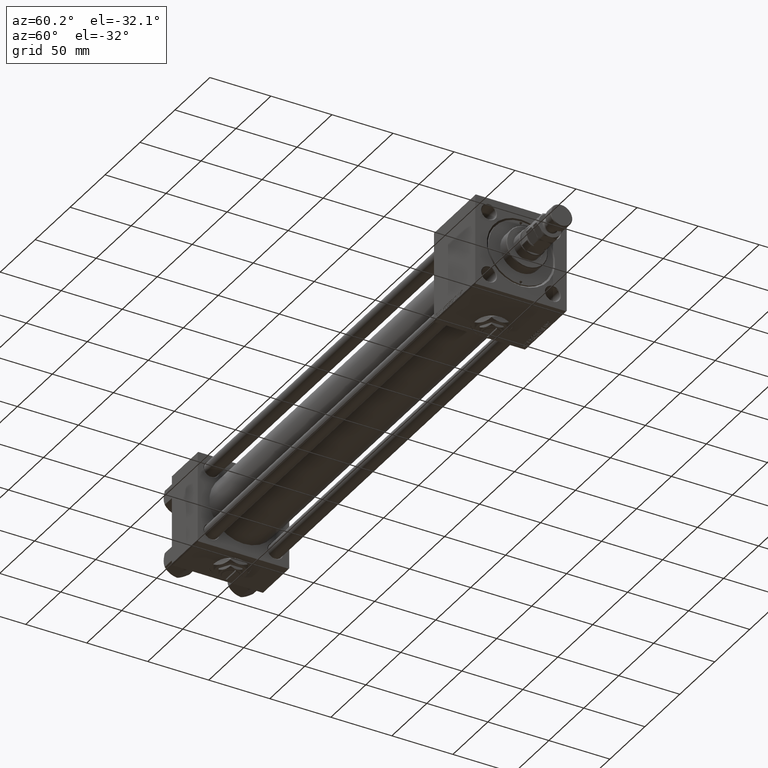
[diagram: clean part render]
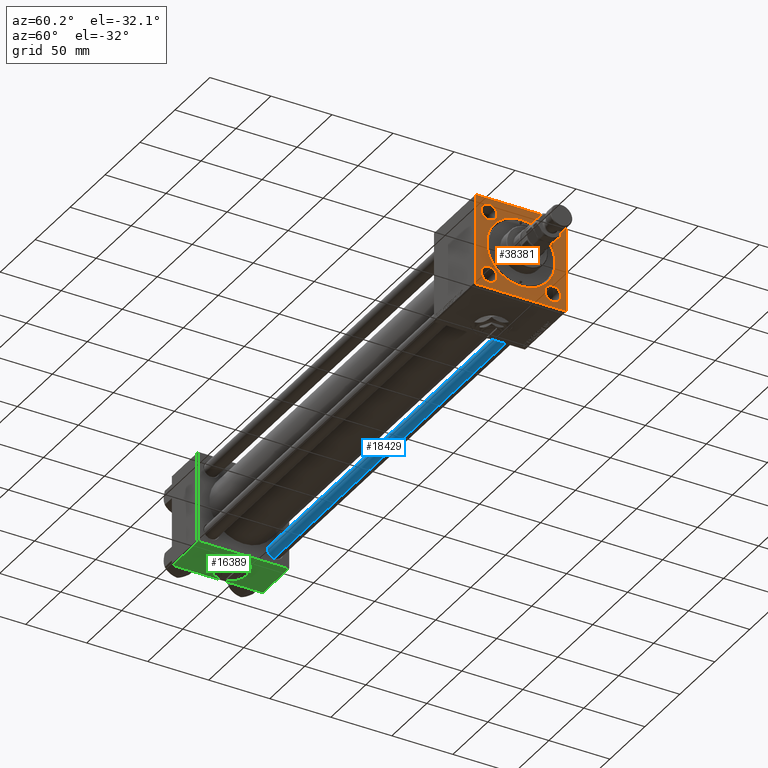
[diagram: same view with three faces highlighted in distinct colors, each labeled with its STEP entity id]
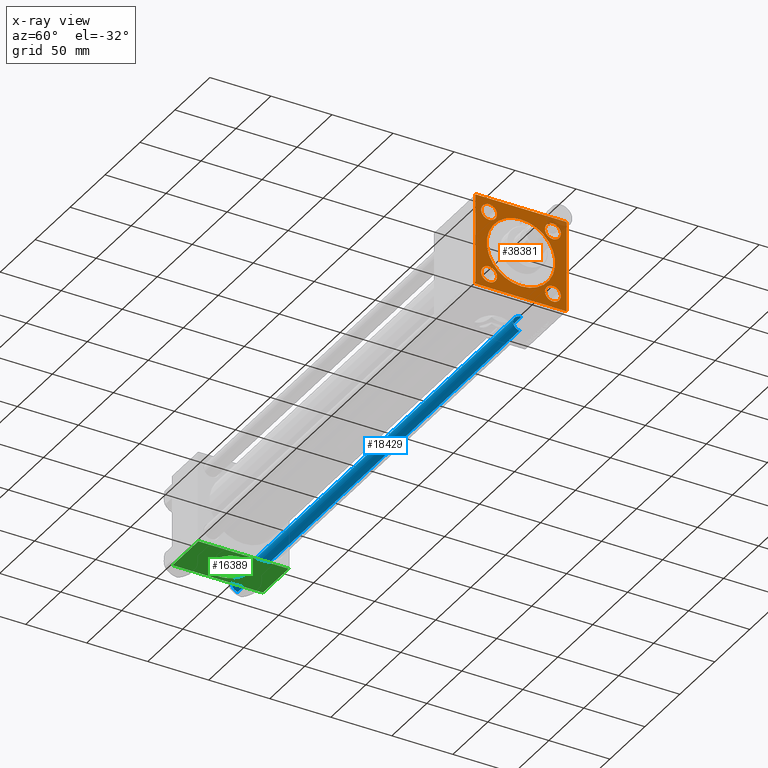
[diagram: x-ray of the same camera — body ghosted, the three highlighted faces saturated]
A machine part, auxiliary view with three faces highlighted in distinct colors.
The next image is the same camera in x-ray (body ghosted, the three faces saturated) — at least one of them is partly hidden behind the body in this view.
Their STEP definitions:

[orange] entity #38381 — the highlighted planar face has unit normal (-1, 0, 0).
#228 = DIRECTION ( 'NONE',  ( -1.000000000000000000, -0.000000000000000000, 0.000000000000000000 ) ) ;
#745 = EDGE_CURVE ( 'NONE', #32223, #28109, #43655, .T. ) ;
#1222 = CIRCLE ( 'NONE', #31742, 6.500000000000119904 ) ;
#1476 = DIRECTION ( 'NONE',  ( -1.000000000000000000, -0.000000000000000000, 0.000000000000000000 ) ) ;
#1511 = CARTESIAN_POINT ( 'NONE',  ( 434.0000000000000000, 26.14999999999999858, -19.64999999999988489 ) ) ;
#1642 = CIRCLE ( 'NONE', #39164, 28.00000000000008171 ) ;
#1670 = ORIENTED_EDGE ( 'NONE', *, *, #21514, .T. ) ;
#2296 = VERTEX_POINT ( 'NONE', #51882 ) ;
#2302 = LINE ( 'NONE', #27414, #23495 ) ;
#2342 = DIRECTION ( 'NONE',  ( -1.000000000000000000, -0.000000000000000000, 0.000000000000000000 ) ) ;
#2367 = ORIENTED_EDGE ( 'NONE', *, *, #16642, .T. ) ;
#2412 = CIRCLE ( 'NONE', #18976, 6.500000000000119904 ) ;
#3232 = CIRCLE ( 'NONE', #11958, 6.500000000000119904 ) ;
#4165 = CIRCLE ( 'NONE', #32099, 6.500000000000119904 ) ;
#4256 = CARTESIAN_POINT ( 'NONE',  ( 434.0000000000000000, 37.50000000000000000, -37.50000000000000000 ) ) ;
#4469 = CARTESIAN_POINT ( 'NONE',  ( 434.0000000000000000, -26.14999999999999147, 26.14999999999999503 ) ) ;
#5011 = DIRECTION ( 'NONE',  ( 0.000000000000000000, 0.000000000000000000, 1.000000000000000000 ) ) ;
#5044 = AXIS2_PLACEMENT_3D ( 'NONE', #4469, #25760, #5011 ) ;
#5656 = DIRECTION ( 'NONE',  ( 0.000000000000000000, 0.000000000000000000, 1.000000000000000000 ) ) ;
#5786 = FACE_BOUND ( 'NONE', #32576, .T. ) ;
#5956 = DIRECTION ( 'NONE',  ( -0.000000000000000000, -0.7071067811865474617, -0.7071067811865474617 ) ) ;
#6056 = DIRECTION ( 'NONE',  ( -1.000000000000000000, -0.000000000000000000, 0.000000000000000000 ) ) ;
#6898 = VECTOR ( 'NONE', #25474, 1000.000000000000000 ) ;
#7560 = VERTEX_POINT ( 'NONE', #36692 ) ;
#7732 = VERTEX_POINT ( 'NONE', #28132 ) ;
#7807 = DIRECTION ( 'NONE',  ( 0.000000000000000000, -1.000000000000000000, 0.000000000000000000 ) ) ;
#8073 = VECTOR ( 'NONE', #51145, 1000.000000000000114 ) ;
#8440 = DIRECTION ( 'NONE',  ( 0.000000000000000000, 0.000000000000000000, 1.000000000000000000 ) ) ;
#8620 = EDGE_CURVE ( 'NONE', #2296, #7560, #16002, .T. ) ;
#8720 = CARTESIAN_POINT ( 'NONE',  ( 434.0000000000000000, 26.14999999999999858, 26.15000000000000213 ) ) ;
#9137 = DIRECTION ( 'NONE',  ( 0.000000000000000000, 0.000000000000000000, 1.000000000000000000 ) ) ;
#9299 = EDGE_LOOP ( 'NONE', ( #39886, #23892 ) ) ;
#10180 = CIRCLE ( 'NONE', #17168, 6.500000000000119904 ) ;
#10265 = DIRECTION ( 'NONE',  ( 0.000000000000000000, 0.000000000000000000, 1.000000000000000000 ) ) ;
#10278 = EDGE_CURVE ( 'NONE', #37252, #27043, #47030, .T. ) ;
#10473 = VECTOR ( 'NONE', #48015, 1000.000000000000000 ) ;
#10534 = DIRECTION ( 'NONE',  ( -1.000000000000000000, -0.000000000000000000, 0.000000000000000000 ) ) ;
#11691 = CARTESIAN_POINT ( 'NONE',  ( 434.0000000000000000, -26.14999999999999147, 19.64999999999988134 ) ) ;
#11916 = VERTEX_POINT ( 'NONE', #52957 ) ;
#11958 = AXIS2_PLACEMENT_3D ( 'NONE', #16890, #228, #12514 ) ;
#12514 = DIRECTION ( 'NONE',  ( 0.000000000000000000, 0.000000000000000000, 1.000000000000000000 ) ) ;
#12523 = VERTEX_POINT ( 'NONE', #35801 ) ;
#13154 = EDGE_CURVE ( 'NONE', #29147, #7732, #1222, .T. ) ;
#13282 = VECTOR ( 'NONE', #7807, 1000.000000000000000 ) ;
#13844 = CARTESIAN_POINT ( 'NONE',  ( 434.0000000000000000, 3.429011037612599137E-15, 28.00000000000008171 ) ) ;
#14185 = DIRECTION ( 'NONE',  ( 0.000000000000000000, 0.000000000000000000, 1.000000000000000000 ) ) ;
#14361 = CARTESIAN_POINT ( 'NONE',  ( 434.0000000000000000, 26.14999999999999858, 26.15000000000000213 ) ) ;
#14663 = CARTESIAN_POINT ( 'NONE',  ( 434.0000000000000000, 37.50000000000000000, -36.99999999999993605 ) ) ;
#14845 = EDGE_CURVE ( 'NONE', #28109, #25658, #32622, .T. ) ;
#15679 = CARTESIAN_POINT ( 'NONE',  ( 434.0000000000000000, -36.99999999999994316, 37.49999999999997868 ) ) ;
#16002 = LINE ( 'NONE', #4256, #13282 ) ;
#16105 = CARTESIAN_POINT ( 'NONE',  ( 434.0000000000000000, -26.14999999999999147, 32.65000000000011227 ) ) ;
#16108 = AXIS2_PLACEMENT_3D ( 'NONE', #45686, #50341, #24903 ) ;
#16483 = DIRECTION ( 'NONE',  ( 0.000000000000000000, -9.251858538542972814E-17, -1.000000000000000000 ) ) ;
#16642 = EDGE_CURVE ( 'NONE', #12523, #11916, #41431, .T. ) ;
#16890 = CARTESIAN_POINT ( 'NONE',  ( 434.0000000000000000, 26.14999999999999858, -26.15000000000000213 ) ) ;
#17154 = ORIENTED_EDGE ( 'NONE', *, *, #31235, .F. ) ;
#17168 = AXIS2_PLACEMENT_3D ( 'NONE', #19614, #19342, #14185 ) ;
#17404 = CARTESIAN_POINT ( 'NONE',  ( 434.0000000000000000, 0.000000000000000000, 0.000000000000000000 ) ) ;
#17799 = CARTESIAN_POINT ( 'NONE',  ( 434.0000000000000000, 0.000000000000000000, 0.000000000000000000 ) ) ;
#18243 = CARTESIAN_POINT ( 'NONE',  ( 434.0000000000000000, -37.50000000000000000, 36.99999999999992184 ) ) ;
#18976 = AXIS2_PLACEMENT_3D ( 'NONE', #14361, #2342, #10265 ) ;
#19342 = DIRECTION ( 'NONE',  ( -1.000000000000000000, -0.000000000000000000, 0.000000000000000000 ) ) ;
#19585 = ORIENTED_EDGE ( 'NONE', *, *, #31803, .T. ) ;
#19614 = CARTESIAN_POINT ( 'NONE',  ( 434.0000000000000000, -26.15000000000000213, -26.15000000000000213 ) ) ;
#20165 = EDGE_LOOP ( 'NONE', ( #25024, #44587 ) ) ;
#21189 = DIRECTION ( 'NONE',  ( -1.000000000000000000, -0.000000000000000000, 0.000000000000000000 ) ) ;
#21209 = VERTEX_POINT ( 'NONE', #16105 ) ;
#21514 = EDGE_CURVE ( 'NONE', #25658, #7560, #23699, .T. ) ;
#21611 = AXIS2_PLACEMENT_3D ( 'NONE', #38106, #1476, #9137 ) ;
#21939 = EDGE_CURVE ( 'NONE', #7732, #29147, #3232, .T. ) ;
#22451 = CIRCLE ( 'NONE', #53035, 28.00000000000008171 ) ;
#23495 = VECTOR ( 'NONE', #35635, 1000.000000000000000 ) ;
#23699 = LINE ( 'NONE', #28338, #40758 ) ;
#23892 = ORIENTED_EDGE ( 'NONE', *, *, #48964, .T. ) ;
#23922 = CARTESIAN_POINT ( 'NONE',  ( 434.0000000000000000, -37.50000000000000000, 36.99999999999992184 ) ) ;
#23970 = CARTESIAN_POINT ( 'NONE',  ( 434.0000000000000000, 26.14999999999999858, 32.65000000000012648 ) ) ;
#24697 = VERTEX_POINT ( 'NONE', #23970 ) ;
#24903 = DIRECTION ( 'NONE',  ( 0.000000000000000000, 0.000000000000000000, 1.000000000000000000 ) ) ;
#25024 = ORIENTED_EDGE ( 'NONE', *, *, #49605, .T. ) ;
#25196 = LINE ( 'NONE', #41880, #6898 ) ;
#25474 = DIRECTION ( 'NONE',  ( 0.000000000000000000, -1.000000000000000000, -1.850371707708594316E-16 ) ) ;
#25658 = VERTEX_POINT ( 'NONE', #42015 ) ;
#25659 = EDGE_CURVE ( 'NONE', #38937, #44734, #1642, .T. ) ;
#25760 = DIRECTION ( 'NONE',  ( -1.000000000000000000, -0.000000000000000000, 0.000000000000000000 ) ) ;
#25827 = CARTESIAN_POINT ( 'NONE',  ( 434.0000000000000000, 0.000000000000000000, 0.000000000000000000 ) ) ;
#26270 = FACE_BOUND ( 'NONE', #9299, .T. ) ;
#26543 = VECTOR ( 'NONE', #16483, 1000.000000000000000 ) ;
#26680 = ORIENTED_EDGE ( 'NONE', *, *, #48721, .T. ) ;
#27043 = VERTEX_POINT ( 'NONE', #27674 ) ;
#27180 = DIRECTION ( 'NONE',  ( 0.000000000000000000, 0.000000000000000000, 1.000000000000000000 ) ) ;
#27414 = CARTESIAN_POINT ( 'NONE',  ( 434.0000000000000000, 37.50000000000000000, 37.49999999999999289 ) ) ;
#27627 = ORIENTED_EDGE ( 'NONE', *, *, #8620, .F. ) ;
#27674 = CARTESIAN_POINT ( 'NONE',  ( 434.0000000000000000, 36.99999999999994316, 37.49999999999999289 ) ) ;
#28109 = VERTEX_POINT ( 'NONE', #23922 ) ;
#28132 = CARTESIAN_POINT ( 'NONE',  ( 434.0000000000000000, 26.14999999999999858, -32.65000000000012648 ) ) ;
#28338 = CARTESIAN_POINT ( 'NONE',  ( 434.0000000000000000, -36.99999999999990052, -37.50000000000000000 ) ) ;
#29147 = VERTEX_POINT ( 'NONE', #1511 ) ;
#29536 = ORIENTED_EDGE ( 'NONE', *, *, #21939, .T. ) ;
#29808 = VERTEX_POINT ( 'NONE', #33007 ) ;
#29982 = EDGE_CURVE ( 'NONE', #27043, #32223, #25196, .T. ) ;
#30762 = DIRECTION ( 'NONE',  ( -1.000000000000000000, -0.000000000000000000, 0.000000000000000000 ) ) ;
#30854 = ORIENTED_EDGE ( 'NONE', *, *, #10278, .T. ) ;
#30901 = FACE_OUTER_BOUND ( 'NONE', #53273, .T. ) ;
#31235 = EDGE_CURVE ( 'NONE', #37252, #51620, #2302, .T. ) ;
#31400 = CARTESIAN_POINT ( 'NONE',  ( 434.0000000000000000, 0.000000000000000000, -28.00000000000008171 ) ) ;
#31742 = AXIS2_PLACEMENT_3D ( 'NONE', #47969, #10534, #27180 ) ;
#31803 = EDGE_CURVE ( 'NONE', #2296, #51620, #51333, .T. ) ;
#32099 = AXIS2_PLACEMENT_3D ( 'NONE', #8720, #33037, #8440 ) ;
#32223 = VERTEX_POINT ( 'NONE', #15679 ) ;
#32576 = EDGE_LOOP ( 'NONE', ( #26680, #50481 ) ) ;
#32622 = LINE ( 'NONE', #50116, #26543 ) ;
#33007 = CARTESIAN_POINT ( 'NONE',  ( 434.0000000000000000, 26.14999999999999858, 19.64999999999988134 ) ) ;
#33037 = DIRECTION ( 'NONE',  ( -1.000000000000000000, -0.000000000000000000, 0.000000000000000000 ) ) ;
#33400 = ORIENTED_EDGE ( 'NONE', *, *, #13154, .T. ) ;
#34492 = DIRECTION ( 'NONE',  ( 0.000000000000000000, 0.000000000000000000, 1.000000000000000000 ) ) ;
#35022 = PLANE ( 'NONE',  #42127 ) ;
#35635 = DIRECTION ( 'NONE',  ( 0.000000000000000000, 0.000000000000000000, -1.000000000000000000 ) ) ;
#35801 = CARTESIAN_POINT ( 'NONE',  ( 434.0000000000000000, -26.15000000000000213, -32.65000000000012648 ) ) ;
#36332 = VERTEX_POINT ( 'NONE', #11691 ) ;
#36692 = CARTESIAN_POINT ( 'NONE',  ( 434.0000000000000000, -36.99999999999990052, -37.50000000000000000 ) ) ;
#37252 = VERTEX_POINT ( 'NONE', #42554 ) ;
#37733 = CARTESIAN_POINT ( 'NONE',  ( 434.0000000000000000, 37.50000000000000000, -36.99999999999993605 ) ) ;
#38106 = CARTESIAN_POINT ( 'NONE',  ( 434.0000000000000000, -26.14999999999999147, 26.14999999999999503 ) ) ;
#38381 = ADVANCED_FACE ( 'NONE', ( #43478, #26270, #42684, #43210, #5786, #30901 ), #35022, .F. ) ;
#38937 = VERTEX_POINT ( 'NONE', #13844 ) ;
#39164 = AXIS2_PLACEMENT_3D ( 'NONE', #17404, #30762, #5656 ) ;
#39361 = ORIENTED_EDGE ( 'NONE', *, *, #14845, .T. ) ;
#39750 = ORIENTED_EDGE ( 'NONE', *, *, #47242, .T. ) ;
#39886 = ORIENTED_EDGE ( 'NONE', *, *, #52823, .T. ) ;
#40382 = DIRECTION ( 'NONE',  ( 0.000000000000000000, 0.7071067811865474617, -0.7071067811865474617 ) ) ;
#40413 = ORIENTED_EDGE ( 'NONE', *, *, #29982, .T. ) ;
#40758 = VECTOR ( 'NONE', #40382, 1000.000000000000114 ) ;
#40795 = CIRCLE ( 'NONE', #5044, 6.500000000000113687 ) ;
#41431 = CIRCLE ( 'NONE', #16108, 6.500000000000119904 ) ;
#41716 = EDGE_LOOP ( 'NONE', ( #2367, #39750 ) ) ;
#41880 = CARTESIAN_POINT ( 'NONE',  ( 434.0000000000000000, 37.50000000000000000, 37.49999999999999289 ) ) ;
#41901 = ORIENTED_EDGE ( 'NONE', *, *, #745, .T. ) ;
#42015 = CARTESIAN_POINT ( 'NONE',  ( 434.0000000000000000, -37.50000000000000711, -36.99999999999989342 ) ) ;
#42127 = AXIS2_PLACEMENT_3D ( 'NONE', #17799, #6056, #34492 ) ;
#42554 = CARTESIAN_POINT ( 'NONE',  ( 434.0000000000000000, 37.50000000000000000, 36.99999999999993605 ) ) ;
#42684 = FACE_BOUND ( 'NONE', #41716, .T. ) ;
#43210 = FACE_BOUND ( 'NONE', #44849, .T. ) ;
#43478 = FACE_BOUND ( 'NONE', #20165, .T. ) ;
#43655 = LINE ( 'NONE', #18243, #47991 ) ;
#44587 = ORIENTED_EDGE ( 'NONE', *, *, #52635, .T. ) ;
#44734 = VERTEX_POINT ( 'NONE', #31400 ) ;
#44849 = EDGE_LOOP ( 'NONE', ( #29536, #33400 ) ) ;
#45686 = CARTESIAN_POINT ( 'NONE',  ( 434.0000000000000000, -26.15000000000000213, -26.15000000000000213 ) ) ;
#46495 = CARTESIAN_POINT ( 'NONE',  ( 434.0000000000000000, 36.99999999999994316, 37.49999999999999289 ) ) ;
#47030 = LINE ( 'NONE', #46495, #8073 ) ;
#47142 = DIRECTION ( 'NONE',  ( 0.000000000000000000, 0.000000000000000000, 1.000000000000000000 ) ) ;
#47242 = EDGE_CURVE ( 'NONE', #11916, #12523, #10180, .T. ) ;
#47819 = CIRCLE ( 'NONE', #21611, 6.500000000000113687 ) ;
#47969 = CARTESIAN_POINT ( 'NONE',  ( 434.0000000000000000, 26.14999999999999858, -26.15000000000000213 ) ) ;
#47991 = VECTOR ( 'NONE', #5956, 1000.000000000000114 ) ;
#48015 = DIRECTION ( 'NONE',  ( -0.000000000000000000, 0.7071067811865426878, 0.7071067811865524577 ) ) ;
#48721 = EDGE_CURVE ( 'NONE', #44734, #38937, #22451, .T. ) ;
#48964 = EDGE_CURVE ( 'NONE', #21209, #36332, #40795, .T. ) ;
#49605 = EDGE_CURVE ( 'NONE', #29808, #24697, #4165, .T. ) ;
#50116 = CARTESIAN_POINT ( 'NONE',  ( 434.0000000000000000, -37.50000000000000000, 37.49999999999997868 ) ) ;
#50341 = DIRECTION ( 'NONE',  ( -1.000000000000000000, -0.000000000000000000, 0.000000000000000000 ) ) ;
#50481 = ORIENTED_EDGE ( 'NONE', *, *, #25659, .T. ) ;
#51145 = DIRECTION ( 'NONE',  ( 0.000000000000000000, -0.7071067811865474617, 0.7071067811865474617 ) ) ;
#51333 = LINE ( 'NONE', #14663, #10473 ) ;
#51620 = VERTEX_POINT ( 'NONE', #37733 ) ;
#51882 = CARTESIAN_POINT ( 'NONE',  ( 434.0000000000000000, 36.99999999999994316, -37.50000000000000000 ) ) ;
#52635 = EDGE_CURVE ( 'NONE', #24697, #29808, #2412, .T. ) ;
#52823 = EDGE_CURVE ( 'NONE', #36332, #21209, #47819, .T. ) ;
#52957 = CARTESIAN_POINT ( 'NONE',  ( 434.0000000000000000, -26.15000000000000213, -19.64999999999988489 ) ) ;
#53035 = AXIS2_PLACEMENT_3D ( 'NONE', #25827, #21189, #47142 ) ;
#53273 = EDGE_LOOP ( 'NONE', ( #39361, #1670, #27627, #19585, #17154, #30854, #40413, #41901 ) ) ;

[blue] entity #18429 — the highlighted cylindrical surface (edge-blend (fillet) strip) has radius 6 mm, axis along (1, -0, 0).
#1632 = DIRECTION ( 'NONE',  ( -0.000000000000000000, -0.000000000000000000, -1.000000000000000000 ) ) ;
#3339 = VERTEX_POINT ( 'NONE', #28881 ) ;
#6256 = CARTESIAN_POINT ( 'NONE',  ( 6.000000000000000888, 7.347880794884120722E-16, 404.0000000000000000 ) ) ;
#6443 = CIRCLE ( 'NONE', #32609, 6.000000000000000888 ) ;
#6881 = ORIENTED_EDGE ( 'NONE', *, *, #12179, .T. ) ;
#8576 = ORIENTED_EDGE ( 'NONE', *, *, #27799, .F. ) ;
#9720 = DIRECTION ( 'NONE',  ( 1.000000000000000000, 0.000000000000000000, 0.000000000000000000 ) ) ;
#11130 = DIRECTION ( 'NONE',  ( -0.000000000000000000, -0.000000000000000000, 1.000000000000000000 ) ) ;
#11297 = VECTOR ( 'NONE', #1632, 1000.000000000000000 ) ;
#12179 = EDGE_CURVE ( 'NONE', #3339, #12855, #29096, .T. ) ;
#12855 = VERTEX_POINT ( 'NONE', #19591 ) ;
#12948 = EDGE_CURVE ( 'NONE', #27240, #39303, #6443, .T. ) ;
#13031 = DIRECTION ( 'NONE',  ( 1.000000000000000000, 0.000000000000000000, 0.000000000000000000 ) ) ;
#14081 = CARTESIAN_POINT ( 'NONE',  ( 0.000000000000000000, 0.000000000000000000, 403.5000000000000000 ) ) ;
#17142 = LINE ( 'NONE', #42552, #21203 ) ;
#17411 = DIRECTION ( 'NONE',  ( -0.000000000000000000, -0.000000000000000000, -1.000000000000000000 ) ) ;
#18273 = CYLINDRICAL_SURFACE ( 'NONE', #49348, 6.000000000000000888 ) ;
#18429 = ADVANCED_FACE ( 'NONE', ( #47249 ), #18273, .T. ) ;
#19591 = CARTESIAN_POINT ( 'NONE',  ( -6.000000000000000888, 0.000000000000000000, 403.5000000000000000 ) ) ;
#21203 = VECTOR ( 'NONE', #17411, 1000.000000000000000 ) ;
#22106 = CARTESIAN_POINT ( 'NONE',  ( 0.000000000000000000, 0.000000000000000000, 404.0000000000000000 ) ) ;
#27240 = VERTEX_POINT ( 'NONE', #31695 ) ;
#27799 = EDGE_CURVE ( 'NONE', #3339, #39303, #51377, .T. ) ;
#28881 = CARTESIAN_POINT ( 'NONE',  ( 6.000000000000000888, 7.347880794884120722E-16, 403.5000000000000000 ) ) ;
#28988 = ORIENTED_EDGE ( 'NONE', *, *, #12948, .T. ) ;
#29096 = CIRCLE ( 'NONE', #29975, 6.000000000000000888 ) ;
#29975 = AXIS2_PLACEMENT_3D ( 'NONE', #14081, #43590, #9720 ) ;
#31097 = DIRECTION ( 'NONE',  ( -0.000000000000000000, -0.000000000000000000, -1.000000000000000000 ) ) ;
#31695 = CARTESIAN_POINT ( 'NONE',  ( -6.000000000000000888, 0.000000000000000000, 0.5000000000000559552 ) ) ;
#32609 = AXIS2_PLACEMENT_3D ( 'NONE', #48579, #11130, #13031 ) ;
#36183 = EDGE_LOOP ( 'NONE', ( #8576, #6881, #40231, #28988 ) ) ;
#39004 = EDGE_CURVE ( 'NONE', #12855, #27240, #17142, .T. ) ;
#39303 = VERTEX_POINT ( 'NONE', #43283 ) ;
#39843 = DIRECTION ( 'NONE',  ( -1.000000000000000000, 0.000000000000000000, 0.000000000000000000 ) ) ;
#40231 = ORIENTED_EDGE ( 'NONE', *, *, #39004, .T. ) ;
#42552 = CARTESIAN_POINT ( 'NONE',  ( -6.000000000000000888, 0.000000000000000000, 404.0000000000000000 ) ) ;
#43283 = CARTESIAN_POINT ( 'NONE',  ( 6.000000000000000888, 7.347880794884120722E-16, 0.5000000000000559552 ) ) ;
#43590 = DIRECTION ( 'NONE',  ( 0.000000000000000000, 0.000000000000000000, -1.000000000000000000 ) ) ;
#47249 = FACE_OUTER_BOUND ( 'NONE', #36183, .T. ) ;
#48579 = CARTESIAN_POINT ( 'NONE',  ( 0.000000000000000000, 0.000000000000000000, 0.5000000000000559552 ) ) ;
#49348 = AXIS2_PLACEMENT_3D ( 'NONE', #22106, #31097, #39843 ) ;
#51377 = LINE ( 'NONE', #6256, #11297 ) ;

[green] entity #16389 — the highlighted planar face has unit normal (0, 0, -1).
#2176 = DIRECTION ( 'NONE',  ( 0.000000000000000000, -1.000000000000000000, -9.251858538542972814E-17 ) ) ;
#2435 = LINE ( 'NONE', #19626, #37223 ) ;
#2658 = VERTEX_POINT ( 'NONE', #52078 ) ;
#2952 = DIRECTION ( 'NONE',  ( 0.000000000000000000, 1.000000000000000000, 0.000000000000000000 ) ) ;
#3140 = CARTESIAN_POINT ( 'NONE',  ( 37.00000000000000000, 37.49999999999999289, -37.50000000000000000 ) ) ;
#5489 = ORIENTED_EDGE ( 'NONE', *, *, #41217, .F. ) ;
#5969 = VERTEX_POINT ( 'NONE', #34064 ) ;
#6267 = CARTESIAN_POINT ( 'NONE',  ( 37.00000000000000000, 36.99999999999997868, -37.50000000000000000 ) ) ;
#6884 = DIRECTION ( 'NONE',  ( 0.000000000000000000, -1.734723475976806848E-16, -1.000000000000000000 ) ) ;
#7648 = VECTOR ( 'NONE', #30923, 1000.000000000000000 ) ;
#8728 = VERTEX_POINT ( 'NONE', #34046 ) ;
#9390 = CARTESIAN_POINT ( 'NONE',  ( 37.00000000000000000, 37.49999999999999289, -37.50000000000000000 ) ) ;
#9784 = ORIENTED_EDGE ( 'NONE', *, *, #42567, .T. ) ;
#10071 = AXIS2_PLACEMENT_3D ( 'NONE', #23427, #23154, #2952 ) ;
#10879 = AXIS2_PLACEMENT_3D ( 'NONE', #3140, #45210, #36484 ) ;
#11336 = FACE_OUTER_BOUND ( 'NONE', #12254, .T. ) ;
#11773 = CIRCLE ( 'NONE', #10071, 15.00000000000000000 ) ;
#12254 = EDGE_LOOP ( 'NONE', ( #36276, #27685, #9784, #28715 ) ) ;
#13445 = CIRCLE ( 'NONE', #41261, 15.00000000000000000 ) ;
#13886 = EDGE_CURVE ( 'NONE', #43445, #8728, #14720, .T. ) ;
#14548 = LINE ( 'NONE', #9390, #28318 ) ;
#14720 = LINE ( 'NONE', #6267, #31773 ) ;
#16389 = ADVANCED_FACE ( 'NONE', ( #28533, #11336 ), #40574, .T. ) ;
#16478 = CARTESIAN_POINT ( 'NONE',  ( 18.50000000000000711, 15.00000000000000000, -37.50000000000000711 ) ) ;
#19626 = CARTESIAN_POINT ( 'NONE',  ( 0.000000000000000000, 37.49999999999999289, -37.50000000000000000 ) ) ;
#23154 = DIRECTION ( 'NONE',  ( 0.000000000000000000, -1.734723475976806848E-16, -1.000000000000000000 ) ) ;
#23427 = CARTESIAN_POINT ( 'NONE',  ( 18.50000000000000711, 5.302946339999664916E-16, -37.50000000000000711 ) ) ;
#27420 = VERTEX_POINT ( 'NONE', #32394 ) ;
#27434 = EDGE_LOOP ( 'NONE', ( #5489, #43256 ) ) ;
#27685 = ORIENTED_EDGE ( 'NONE', *, *, #13886, .T. ) ;
#28318 = VECTOR ( 'NONE', #35070, 1000.000000000000000 ) ;
#28533 = FACE_BOUND ( 'NONE', #27434, .T. ) ;
#28715 = ORIENTED_EDGE ( 'NONE', *, *, #49101, .T. ) ;
#30923 = DIRECTION ( 'NONE',  ( -1.000000000000000000, 0.000000000000000000, 0.000000000000000000 ) ) ;
#31191 = CARTESIAN_POINT ( 'NONE',  ( 0.000000000000000000, -37.00000000000002132, -37.50000000000000711 ) ) ;
#31773 = VECTOR ( 'NONE', #43432, 1000.000000000000000 ) ;
#32394 = CARTESIAN_POINT ( 'NONE',  ( 0.000000000000000000, -37.00000000000002132, -37.50000000000000711 ) ) ;
#34046 = CARTESIAN_POINT ( 'NONE',  ( 37.00000000000000000, 36.99999999999997868, -37.50000000000000000 ) ) ;
#34064 = CARTESIAN_POINT ( 'NONE',  ( 18.50000000000001066, -15.00000000000000000, -37.50000000000000711 ) ) ;
#35070 = DIRECTION ( 'NONE',  ( 0.000000000000000000, -1.000000000000000000, -9.251858538542972814E-17 ) ) ;
#36276 = ORIENTED_EDGE ( 'NONE', *, *, #46814, .F. ) ;
#36484 = DIRECTION ( 'NONE',  ( 0.000000000000000000, 1.000000000000000000, 9.251858538542972814E-17 ) ) ;
#37223 = VECTOR ( 'NONE', #2176, 1000.000000000000000 ) ;
#39416 = LINE ( 'NONE', #31191, #7648 ) ;
#40219 = DIRECTION ( 'NONE',  ( 0.000000000000000000, 1.000000000000000000, 0.000000000000000000 ) ) ;
#40574 = PLANE ( 'NONE',  #10879 ) ;
#41217 = EDGE_CURVE ( 'NONE', #44167, #5969, #13445, .T. ) ;
#41261 = AXIS2_PLACEMENT_3D ( 'NONE', #44314, #6884, #40219 ) ;
#42567 = EDGE_CURVE ( 'NONE', #8728, #2658, #14548, .T. ) ;
#43256 = ORIENTED_EDGE ( 'NONE', *, *, #43350, .F. ) ;
#43350 = EDGE_CURVE ( 'NONE', #5969, #44167, #11773, .T. ) ;
#43432 = DIRECTION ( 'NONE',  ( 1.000000000000000000, 0.000000000000000000, 0.000000000000000000 ) ) ;
#43445 = VERTEX_POINT ( 'NONE', #48855 ) ;
#44167 = VERTEX_POINT ( 'NONE', #16478 ) ;
#44314 = CARTESIAN_POINT ( 'NONE',  ( 18.50000000000000711, 5.302946339999664916E-16, -37.50000000000000711 ) ) ;
#45210 = DIRECTION ( 'NONE',  ( 0.000000000000000000, 9.251858538542972814E-17, -1.000000000000000000 ) ) ;
#46814 = EDGE_CURVE ( 'NONE', #43445, #27420, #2435, .T. ) ;
#48855 = CARTESIAN_POINT ( 'NONE',  ( 0.000000000000000000, 36.99999999999997868, -37.50000000000000000 ) ) ;
#49101 = EDGE_CURVE ( 'NONE', #2658, #27420, #39416, .T. ) ;
#52078 = CARTESIAN_POINT ( 'NONE',  ( 37.00000000000000000, -37.00000000000002132, -37.50000000000000711 ) ) ;